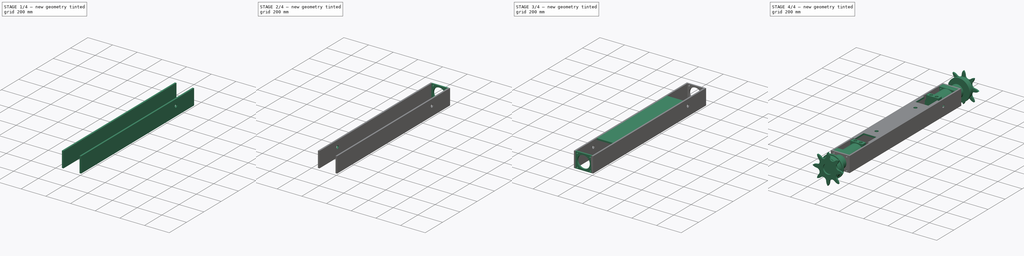
[diagram: build sequence overview — one tinted view per stage of 4, left to right]
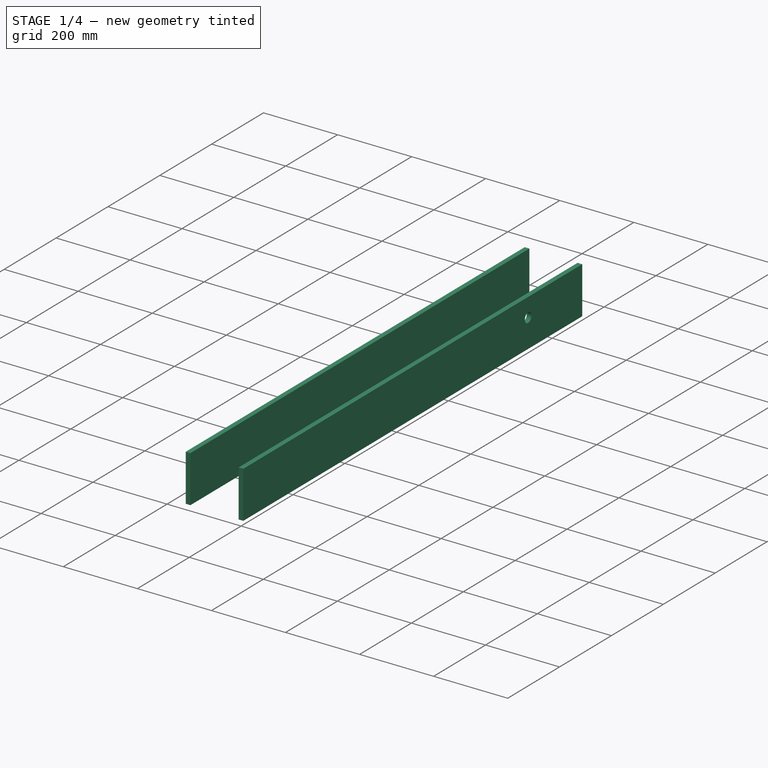
[diagram: stage 1 of 4 — iso view after this stage's code; geometry added in this stage tinted green]
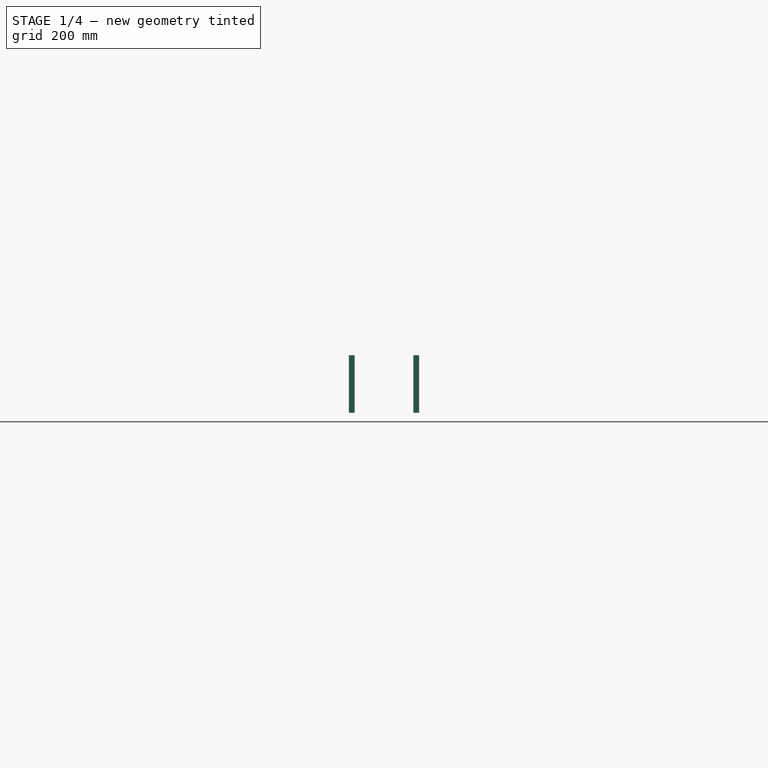
[diagram: stage 1 of 4 — front view after this stage's code; geometry added in this stage tinted green]
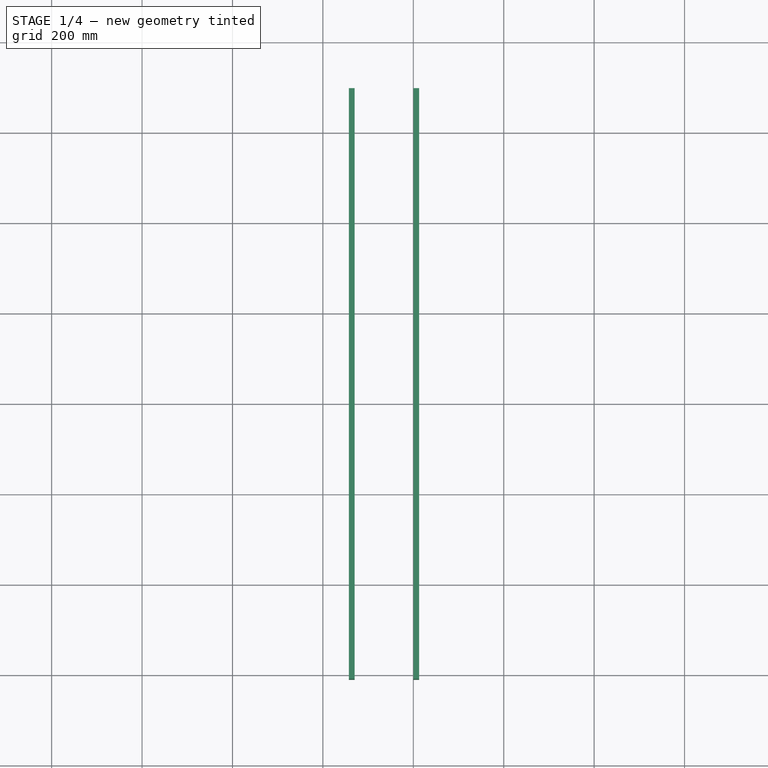
[diagram: stage 1 of 4 — top view after this stage's code; geometry added in this stage tinted green]
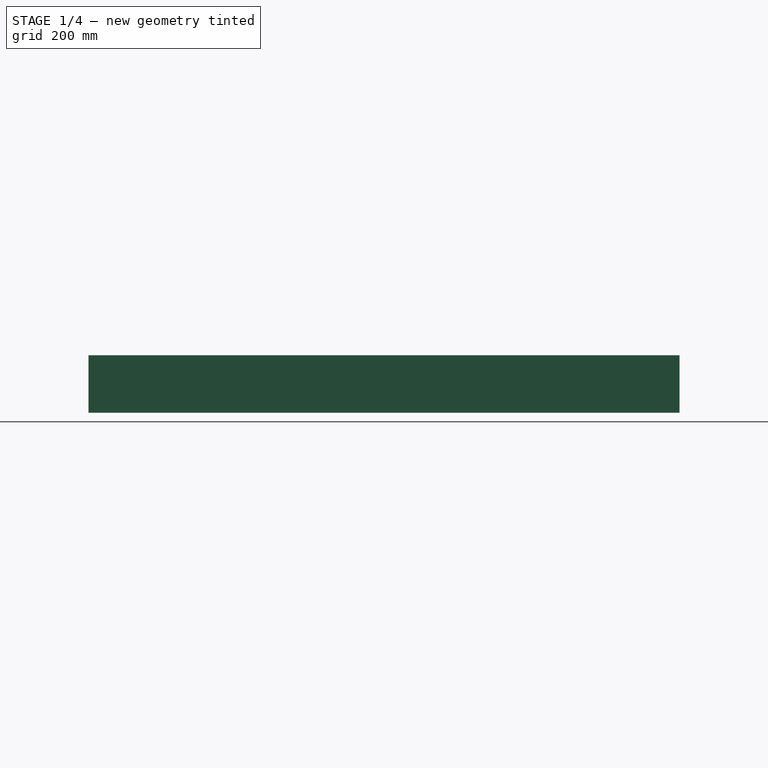
[diagram: stage 1 of 4 — right view after this stage's code; geometry added in this stage tinted green]
FCSTD DOCUMENT  (FreeCAD 0.16R6712 (Git))
Label: LT_track_tensioner
License: All rights reserved
LicenseURL: http://en.wikipedia.org/wiki/All_rights_reserved
objects: App::FeaturePython×13, Part::Feature×4, Sketcher::SketchObject×4, Part::Box×3, PartDesign::Pocket×3, Part::FeaturePython×3, PartDesign::Pad×1, App::DocumentObjectGroup×1, Part::Compound×1
note: 23 computed .brp shape members not serialized (recipe doc carries the construction recipe); baked Part::Feature solids carry a one-line shape summary decoded from their .brp

FEATURE [Part::Feature] Compound  label="Motor Compound004"
  Placement = pos=(444.308,88.9,-139.114) rot=(0,0,1;0rad)
  shape: bbox 249.2 x 371 x 248.2 mm, 260 faces, 5 solids (baked)
FEATURE [Part::Box] Box  label="Cube"
  Height = 127
  Length = 12.7
  Placement = pos=(-399.751,1390.19,-669.671) rot=(0,0,1;0rad)
  Width = 1307.05
FEATURE [Part::Box] Box001  label="Cube001"
  Height = 127
  Length = 12.7
  Placement = pos=(-542.626,1390.19,-669.671) rot=(0,0,1;0rad)
  Width = 1307.05
FEATURE [Sketcher::SketchObject] Sketch004
  Placement = pos=(-387.051,1390.19,-669.671) rot=(0.57735,0.57735,0.57735;2.0944rad)
  Support = -> Box [Face2]
  sketch-geometry (1):
    g0: Circle CenterX=1098.26 CenterY=76.2 CenterZ=0 NormalX=0 NormalY=0 NormalZ=1 Radius=12.7
  constraints (3):
    c: DistanceY(g0) = 76.2
    c: Radius(g0) = 12.7
    c: DistanceX(g0) = 1098.26
FEATURE [PartDesign::Pocket] Pocket002
  Length = 12.7
  Placement = pos=(-399.751,1390.19,-669.671) rot=(0,0,1;0rad)
  Sketch = -> Sketch004
  Type = 0
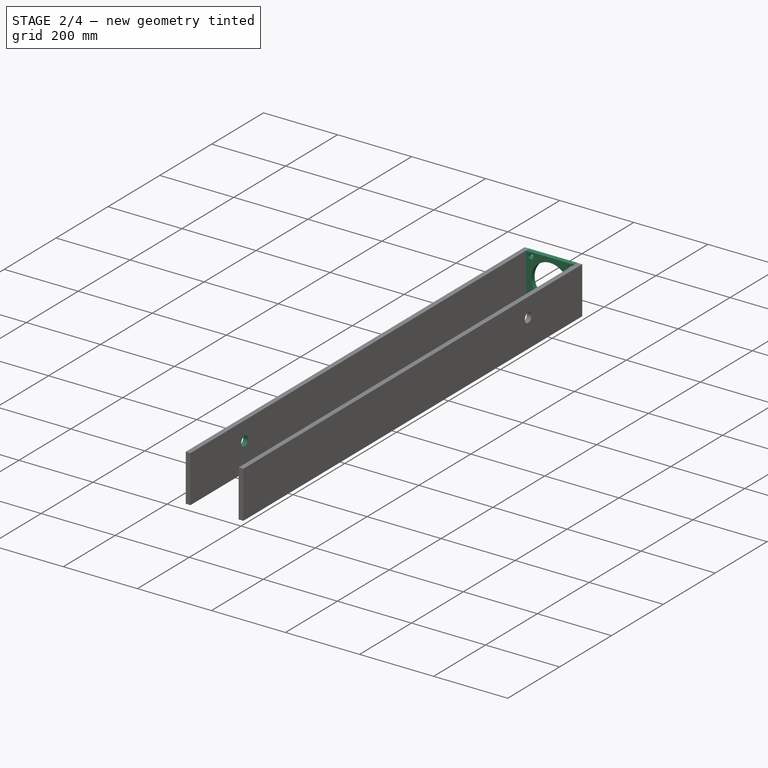
[diagram: stage 2 of 4 — iso view after this stage's code; geometry added in this stage tinted green]
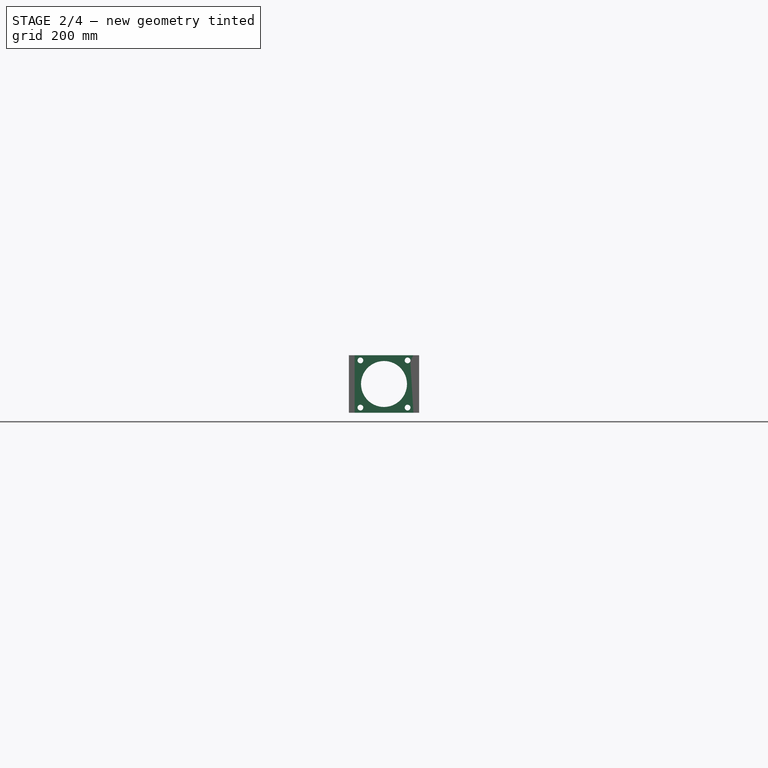
[diagram: stage 2 of 4 — front view after this stage's code; geometry added in this stage tinted green]
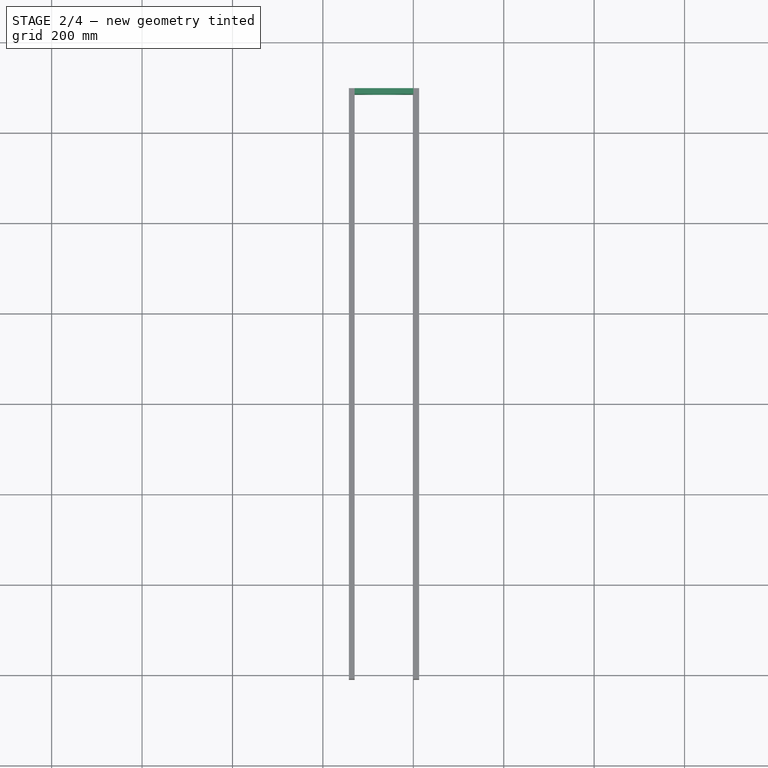
[diagram: stage 2 of 4 — top view after this stage's code; geometry added in this stage tinted green]
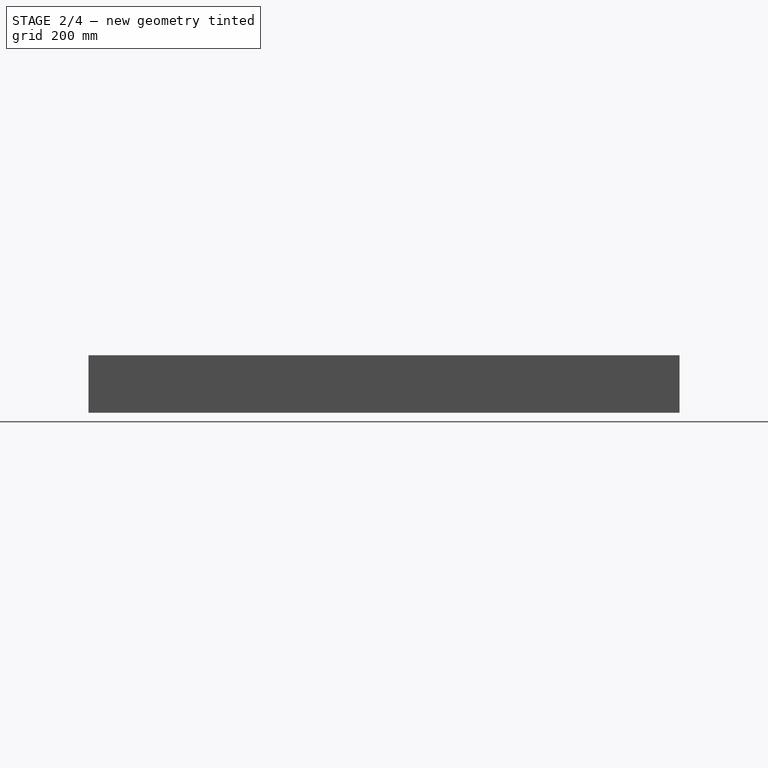
[diagram: stage 2 of 4 — right view after this stage's code; geometry added in this stage tinted green]
FEATURE [Sketcher::SketchObject] Sketch002  label="Sketch001"
  Placement = pos=(-45.4408,1446.96,-520.94) rot=(1,0,0;1.5708rad)
  sketch-geometry (9):
    g0: Circle CenterX=0 CenterY=0 CenterZ=0 NormalX=0 NormalY=0 NormalZ=1 Radius=50.8
    g1: Circle CenterX=-52.1977 CenterY=52.1977 CenterZ=0 NormalX=0 NormalY=0 NormalZ=1 Radius=6.35
    g2: Circle CenterX=52.1977 CenterY=52.1977 CenterZ=0 NormalX=0 NormalY=0 NormalZ=1 Radius=6.35
    g3: Circle CenterX=52.1977 CenterY=-52.1977 CenterZ=0 NormalX=0 NormalY=0 NormalZ=1 Radius=6.35
    g4: Circle CenterX=-52.1977 CenterY=-52.1977 CenterZ=0 NormalX=0 NormalY=0 NormalZ=1 Radius=6.35
    g5: LineSegment StartX=-65.0875 StartY=63.5 StartZ=0 EndX=65.0875 EndY=63.5 EndZ=0
    g6: LineSegment StartX=65.0875 StartY=63.5 StartZ=0 EndX=65.0875 EndY=-63.5 EndZ=0
    g7: LineSegment StartX=65.0875 StartY=-63.5 StartZ=0 EndX=-65.0875 EndY=-63.5 EndZ=0
    g8: LineSegment StartX=-65.0875 StartY=-63.5 StartZ=0 EndX=-65.0875 EndY=63.5 EndZ=0
  constraints (17):
    c: Coincident(g0,g-1)
    c: Radius(g0) = 50.8
    c: Radius(g3) = 6.35
    c: Equal(g3,g2)
    c: Equal(g3,g1)
    c: Equal(g3,g4)
    c: Coincident(g5,g6)
    c: Coincident(g6,g7)
    c: Coincident(g7,g8)
    c: Coincident(g8,g5)
    c: Horizontal(g5)
    c: Horizontal(g7)
    c: Vertical(g6)
    c: Vertical(g8)
    c: Equal(g5,g7)
    c: Distance(g5) = 130.175
    c: Symmetric(g5,g5,g-2)
FEATURE [PartDesign::Pad] Pad  label="Motor mount plate"
  Length = 12.7
  Length2 = 100
  Placement = pos=(-45.4408,1446.96,-520.94) rot=(1,0,0;1.5708rad)
  Sketch = -> Sketch002
  Type = 0
FEATURE [App::FeaturePython] planeConstraint02  # a2plus constraint (typed FeaturePython)
  Object1 = Pocket
  Object2 = Box
  SubElement1 = Face3
  SubElement2 = Face6
  Type = plane
  directionConstraint = 0
  offset = 0
FEATURE [App::FeaturePython] planeConstraint03  # a2plus constraint (typed FeaturePython)
  Object1 = Pocket
  Object2 = Box001
  SubElement1 = Face3
  SubElement2 = Face6
  Type = plane
  directionConstraint = 0
  offset = 0
FEATURE [App::FeaturePython] planeConstraint04  # a2plus constraint (typed FeaturePython)
  Object1 = Box
  Object2 = Pocket
  SubElement1 = Face1
  SubElement2 = Face11
  Type = plane
  directionConstraint = 0
  offset = 0
FEATURE [App::FeaturePython] planeConstraint05  # a2plus constraint (typed FeaturePython)
  Object1 = Box001
  Object2 = Pocket
  SubElement1 = Face2
  SubElement2 = Face1
  Type = plane
  directionConstraint = 0
  offset = 0
FEATURE [App::FeaturePython] planeConstraint06  # a2plus constraint (typed FeaturePython)
  Object1 = Box
  Object2 = Clone001
  SubElement1 = Face1
  SubElement2 = Face11
  Type = plane
  directionConstraint = 0
  offset = 0
FEATURE [App::FeaturePython] planeConstraint09  # a2plus constraint (typed FeaturePython)
  Object1 = Clone002
  Object2 = Box001
  SubElement1 = Face11
  SubElement2 = Face3
  Type = plane
  directionConstraint = 1
  offset = 0
FEATURE [App::FeaturePython] planeConstraint10  # a2plus constraint (typed FeaturePython)
  Object1 = Clone002
  Object2 = Box
  SubElement1 = Face11
  SubElement2 = Face3
  Type = plane
  directionConstraint = 1
  offset = 0
FEATURE [App::FeaturePython] planeConstraint11  # a2plus constraint (typed FeaturePython)
  Object1 = Clone002
  Object2 = Box001
  SubElement1 = Face4
  SubElement2 = Face2
  Type = plane
  directionConstraint = 1
  offset = 0
FEATURE [Part::FeaturePython] Clone  label="Clone of Pad"  # Draft clone (typed FeaturePython)
  Objects = -> [Pad]
  Placement = pos=(-464.839,2697.24,-606.171) rot=(1,0,0;1.5708rad)
  Scale = (1,1,1)
FEATURE [App::FeaturePython] planeConstraint01  # a2plus constraint (typed FeaturePython)
  Object1 = Box
  Object2 = Clone
  SubElement1 = Face6
  SubElement2 = Face1
  Type = plane
  directionConstraint = 0
  offset = 0
FEATURE [App::FeaturePython] planeConstraint07  # a2plus constraint (typed FeaturePython)
  Object1 = Box
  Object2 = Clone
  SubElement1 = Face4
  SubElement2 = Face10
  Type = plane
  directionConstraint = 1
  offset = 0
FEATURE [App::FeaturePython] planeConstraint08  # a2plus constraint (typed FeaturePython)
  Object1 = Box
  Object2 = Clone
  SubElement1 = Face1
  SubElement2 = Face2
  Type = plane
  directionConstraint = 0
  offset = 0
FEATURE [Part::Feature] Fusion001003  label="Motor R"
  Placement = pos=(-464.839,2088.69,-606.171) rot=(0,0,1;0rad)
  shape: bbox 248.4 x 374.7 x 248.4 mm, 202 faces, 2 solids (baked)
FEATURE [App::FeaturePython] circularEdgeConstraint01  # a2plus constraint (typed FeaturePython)
  Object1 = Clone002
  Object2 = Fusion001003
  SubElement1 = Edge14
  SubElement2 = Edge50
  Type = circularEdge
  directionConstraint = 0
  lockRotation = false
  offset = 0
FEATURE [Part::Feature] Part__Mirroring002  label="Motor L"
  Placement = pos=(-929.678,0,2e-12) rot=(0,0,1;0rad)
  shape: bbox 248.4 x 374.7 x 248.4 mm, 202 faces, 2 solids (baked)
FEATURE [App::FeaturePython] circularEdgeConstraint02  # a2plus constraint (typed FeaturePython)
  Object1 = Clone
  Object2 = Part__Mirroring002
  SubElement1 = Edge15
  SubElement2 = Edge50
  Type = circularEdge
  directionConstraint = 1
  lockRotation = false
  offset = 0
FEATURE [App::DocumentObjectGroup] Group  label="constraints"
  Group = -> [planeConstraint02,planeConstraint03,planeConstraint04,planeConstraint05,planeConstraint06,planeConstraint09,planeConstraint10,planeConstraint11,planeConstraint01,planeConstraint07,planeConstraint08,circularEdgeConstraint01,circularEdgeConstraint02]
FEATURE [Sketcher::SketchObject] Sketch003
  Placement = pos=(-542.626,1390.19,-669.671) rot=(0.57735,-0.57735,-0.57735;2.0944rad)
  Support = -> Box001 [Face1]
  sketch-geometry (1):
    g0: Circle CenterX=-208.788 CenterY=76.2 CenterZ=0 NormalX=0 NormalY=0 NormalZ=1 Radius=12.7
  constraints (3):
    c: Radius(g0) = 12.7
    c: DistanceX(g0) = -208.788
    c: DistanceY(g0) = 76.2
FEATURE [PartDesign::Pocket] Pocket001
  Length = 12.7
  Placement = pos=(-542.626,1390.19,-669.671) rot=(0,0,1;0rad)
  Sketch = -> Sketch003
  Type = 0
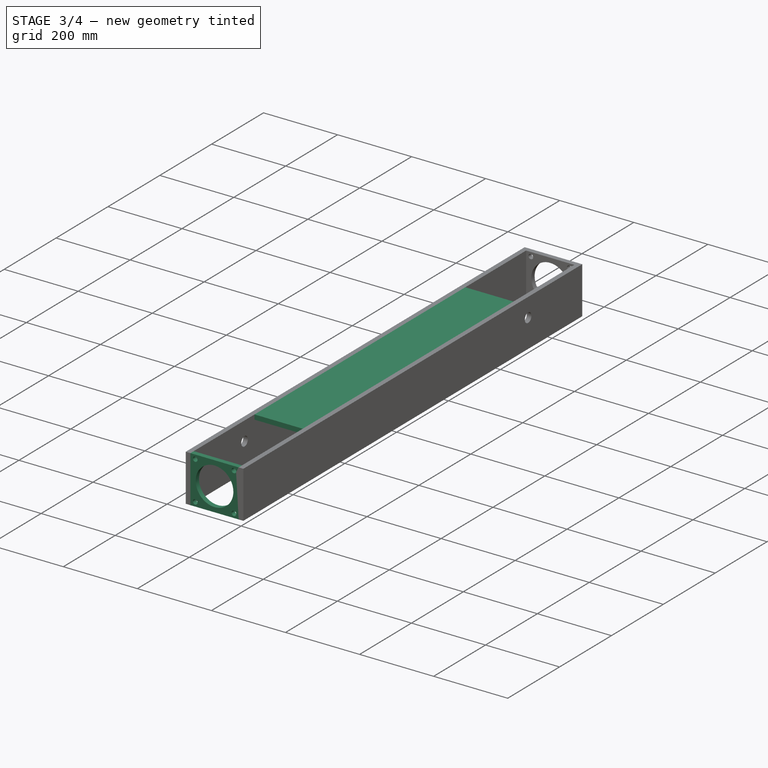
[diagram: stage 3 of 4 — iso view after this stage's code; geometry added in this stage tinted green]
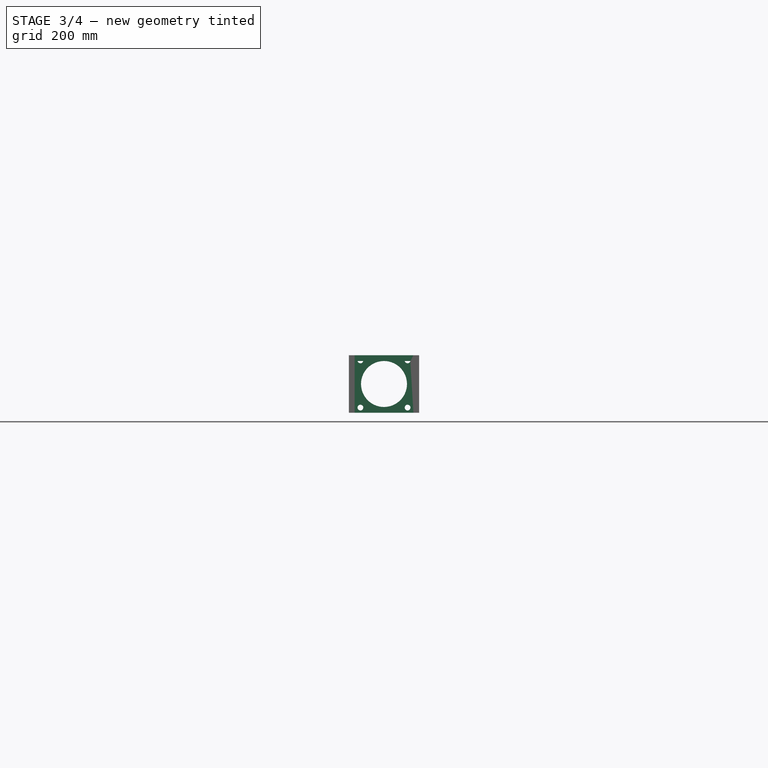
[diagram: stage 3 of 4 — front view after this stage's code; geometry added in this stage tinted green]
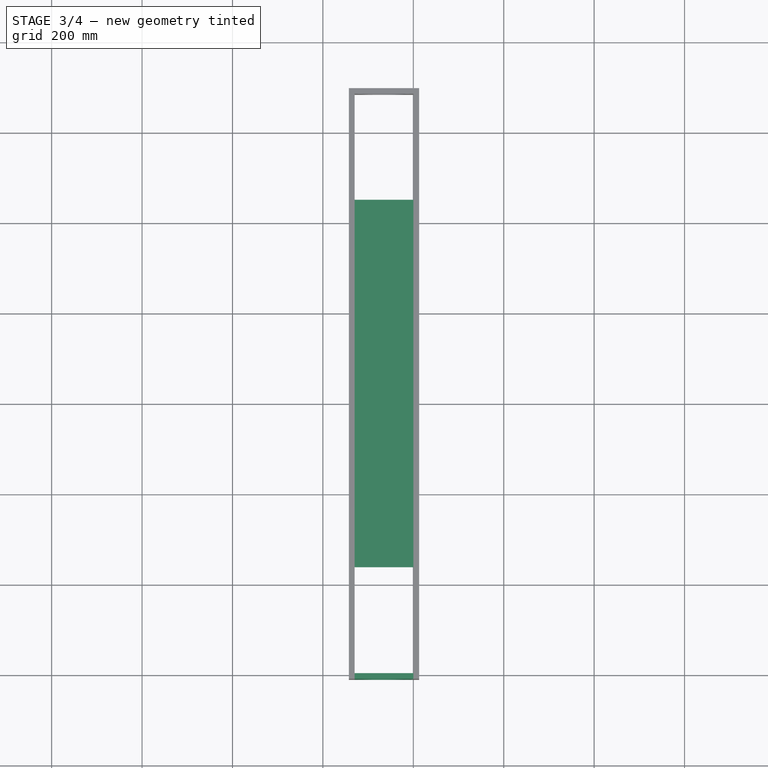
[diagram: stage 3 of 4 — top view after this stage's code; geometry added in this stage tinted green]
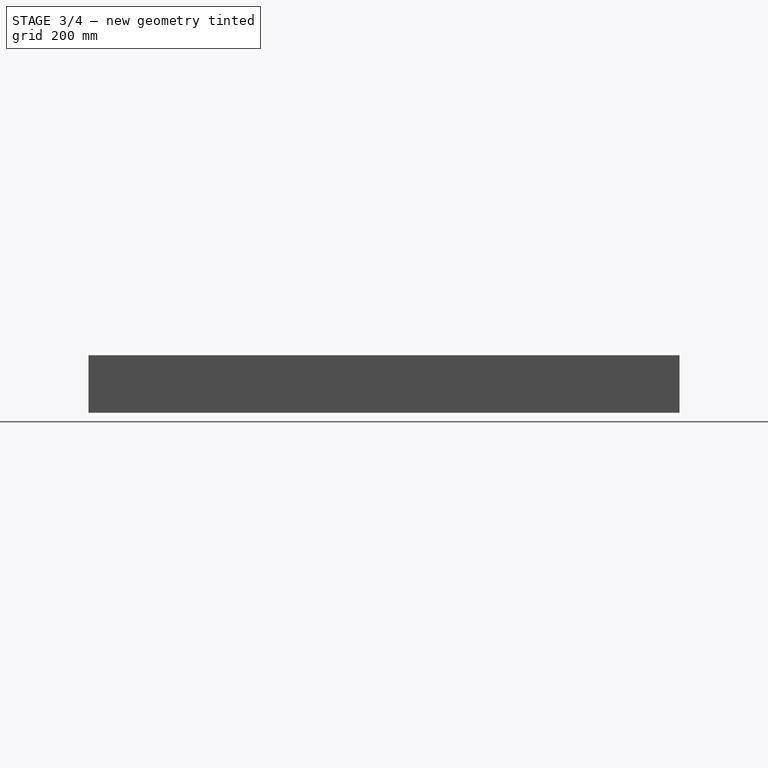
[diagram: stage 3 of 4 — right view after this stage's code; geometry added in this stage tinted green]
FEATURE [Part::Box] Box002  label="Cube002"
  Height = 12.7
  Length = 130.175
  Placement = pos=(-529.926,1637.31,-555.371) rot=(0,0,1;0rad)
  Width = 812.8
FEATURE [Part::FeaturePython] Clone002  label="Clone of Pad001"  # Draft clone (typed FeaturePython)
  Objects = -> [Pad]
  Placement = pos=(-464.839,1402.89,-606.171) rot=(1,0,0;1.5708rad)
  Scale = (1,1,1)
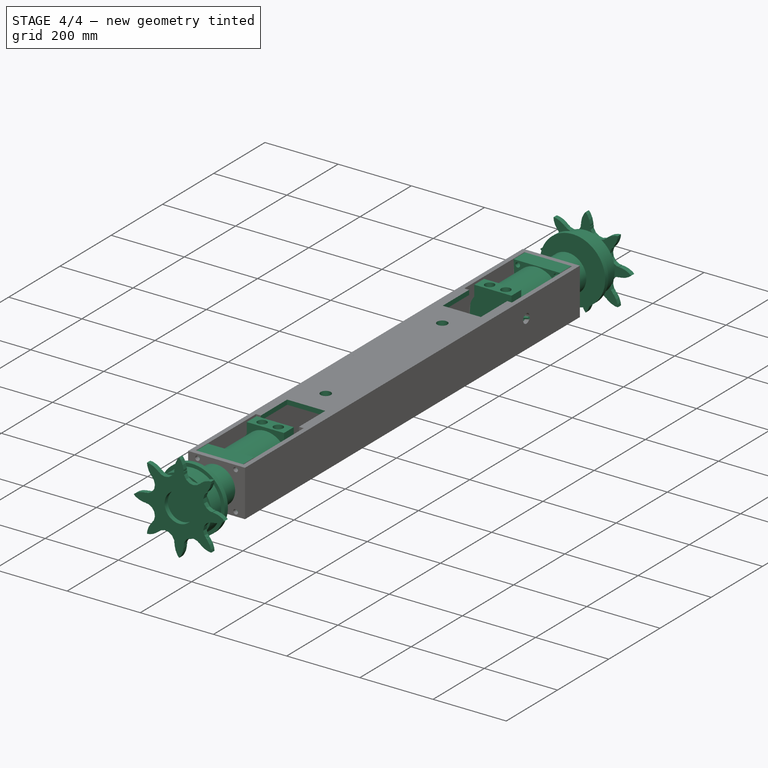
[diagram: stage 4 of 4 — iso view after this stage's code; geometry added in this stage tinted green]
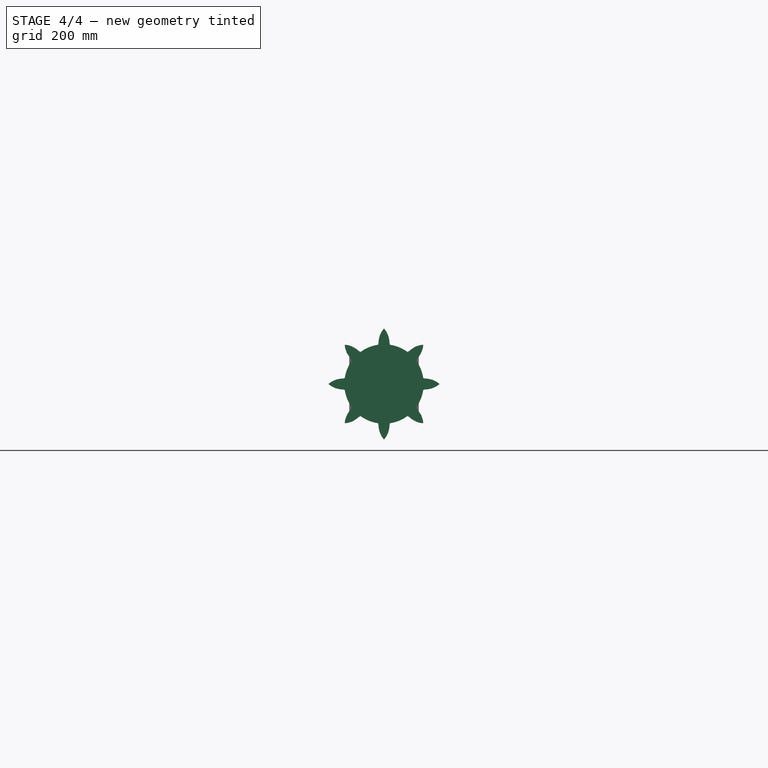
[diagram: stage 4 of 4 — front view after this stage's code; geometry added in this stage tinted green]
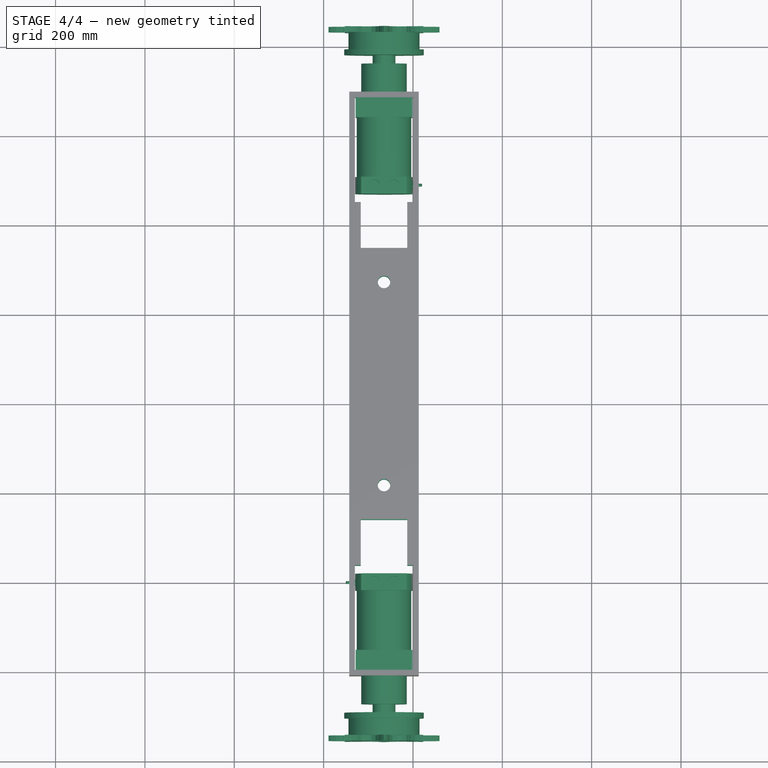
[diagram: stage 4 of 4 — top view after this stage's code; geometry added in this stage tinted green]
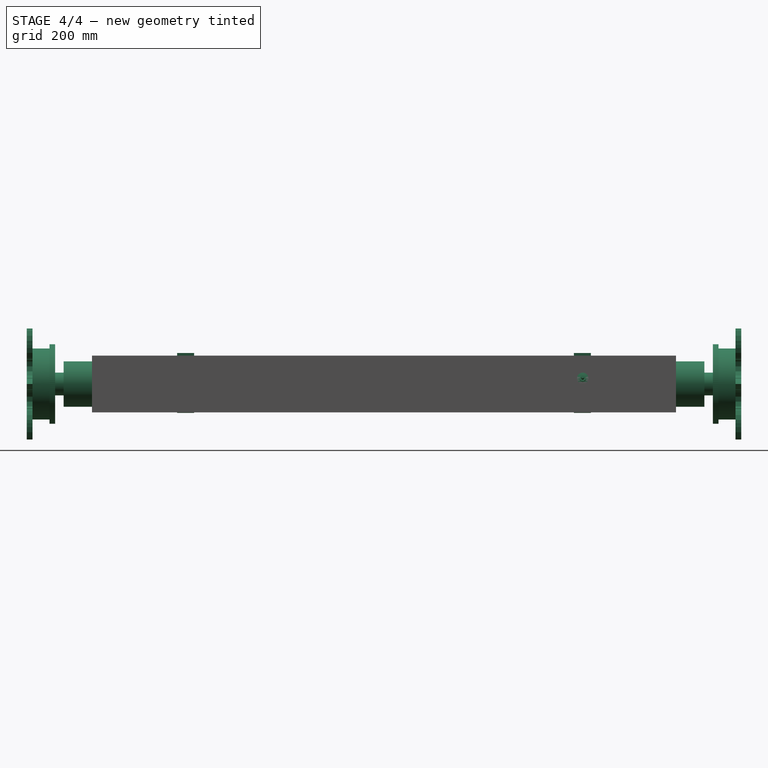
[diagram: stage 4 of 4 — right view after this stage's code; geometry added in this stage tinted green]
FEATURE [Sketcher::SketchObject] Sketch
  Placement = pos=(-529.926,1637.31,-542.671) rot=(0,0,1;0rad)
  Support = -> Box002 [Face6]
  sketch-geometry (14):
    g0: LineSegment StartX=13.0175 StartY=812.8 StartZ=0 EndX=117.157 EndY=812.8 EndZ=0
    g1: LineSegment StartX=117.157 StartY=812.8 StartZ=0 EndX=117.157 EndY=709.93 EndZ=0
    g2: LineSegment StartX=117.157 StartY=709.93 StartZ=0 EndX=13.0175 EndY=709.93 EndZ=0
    g3: LineSegment StartX=13.0175 StartY=709.93 StartZ=0 EndX=13.0175 EndY=812.8 EndZ=0
    g4: LineSegment StartX=13.0175 StartY=102.87 StartZ=0 EndX=117.157 EndY=102.87 EndZ=0
    g5: LineSegment StartX=117.157 StartY=102.87 StartZ=0 EndX=117.157 EndY=0 EndZ=0
    g6: LineSegment StartX=117.157 StartY=0 StartZ=0 EndX=13.0175 EndY=0 EndZ=0
    g7: LineSegment StartX=13.0175 StartY=0 StartZ=0 EndX=13.0175 EndY=102.87 EndZ=0
    g8: Circle CenterX=65.0875 CenterY=633.73 CenterZ=0 NormalX=0 NormalY=0 NormalZ=1 Radius=13.97
    g9: Circle CenterX=65.0875 CenterY=179.07 CenterZ=0 NormalX=0 NormalY=0 NormalZ=1 Radius=13.97
    g10: LineSegment [constr] StartX=13.0175 StartY=709.93 StartZ=0 EndX=65.0875 EndY=633.73 EndZ=0
    g11: LineSegment [constr] StartX=117.157 StartY=709.93 StartZ=0 EndX=65.0875 EndY=633.73 EndZ=0
    g12: LineSegment [constr] StartX=13.0175 StartY=102.87 StartZ=0 EndX=65.0875 EndY=179.07 EndZ=0
    g13: LineSegment [constr] StartX=65.0875 StartY=179.07 StartZ=0 EndX=117.157 EndY=102.87 EndZ=0
  constraints (38):
    c: Coincident(g0,g1)
    c: Coincident(g1,g2)
    c: Coincident(g2,g3)
    c: Coincident(g3,g0)
    c: Horizontal(g0)
    c: Horizontal(g2)
    c: Vertical(g1)
    c: Vertical(g3)
    c: Coincident(g4,g5)
    c: Coincident(g5,g6)
    c: Coincident(g6,g7)
    c: Coincident(g7,g4)
    c: Horizontal(g4)
    c: Horizontal(g6)
    c: Vertical(g5)
    c: Vertical(g7)
    c: Distance(g3) = 102.87
    c: Distance(g2) = 104.14
    c: Distance(g-1,g7) = 13.0175
    c: PointOnObject(g6,g-1)
    c: Distance(g4) = 104.14
    c: DistanceX(g-2,g0) = 13.0175
    c: DistanceY(g-1,g0) = 812.8
    c: Radius(g9) = 13.97
    c: Equal(g9,g8)
    c: Coincident(g10,g2)
    c: Coincident(g10,g8)
    c: Coincident(g11,g1)
    c: Coincident(g11,g8)
    c: Equal(g11,g10)
    c: Distance(g8,g2) = 76.2
    c: Coincident(g4,g12)
    c: Coincident(g12,g9)
    c: Coincident(g12,g13)
    c: Coincident(g13,g4)
    c: Equal(g13,g12)
    c: Distance(g9,g4) = 76.2
    c: Equal(g5,g1)
FEATURE [PartDesign::Pocket] Pocket
  Length = 12.7
  Placement = pos=(-529.926,1637.31,-555.371) rot=(0,0,1;0rad)
  Sketch = -> Sketch
  Type = 0
FEATURE [Part::FeaturePython] Clone001  label="Clone of Pocket"  # Draft clone (typed FeaturePython)
  Objects = -> [Pocket]
  Placement = pos=(-529.926,1637.31,-669.671) rot=(0,0,1;0rad)
  Scale = (1,1,1)
FEATURE [Part::Compound] Compound001
  Links = -> [Clone,Clone001,Clone002,Pocket,Pocket002,Part__Mirroring002,Fusion001003,Pocket001]
FEATURE [Part::Feature] Compound001001  label="Compound002"
  Placement = pos=(812.8,0,0) rot=(0,0,1;0rad)
  shape: bbox 248.4 x 1599 x 248.4 mm, 472 faces, 10 solids (baked)
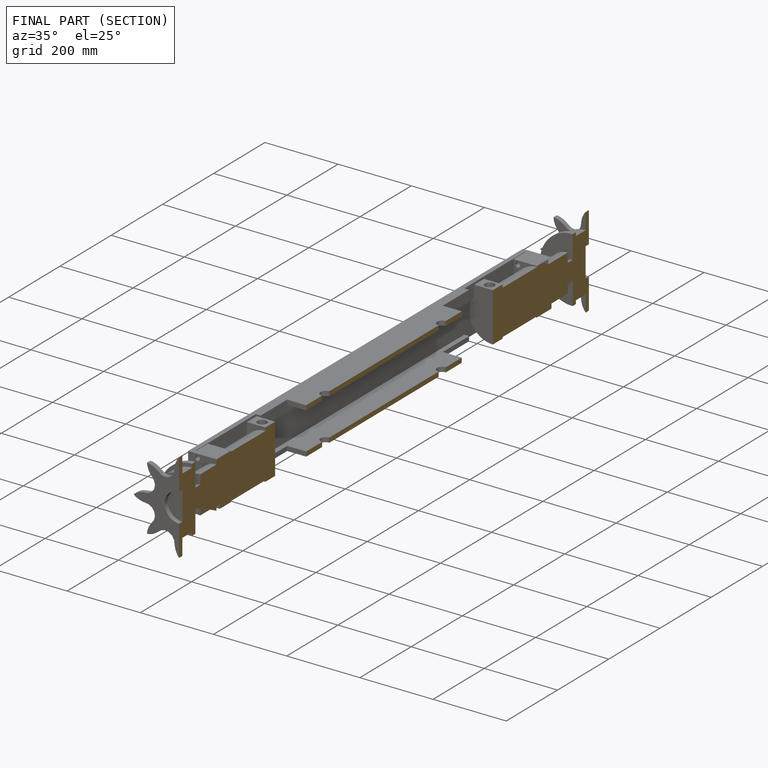
[diagram: finished part — half-section view (interior)]
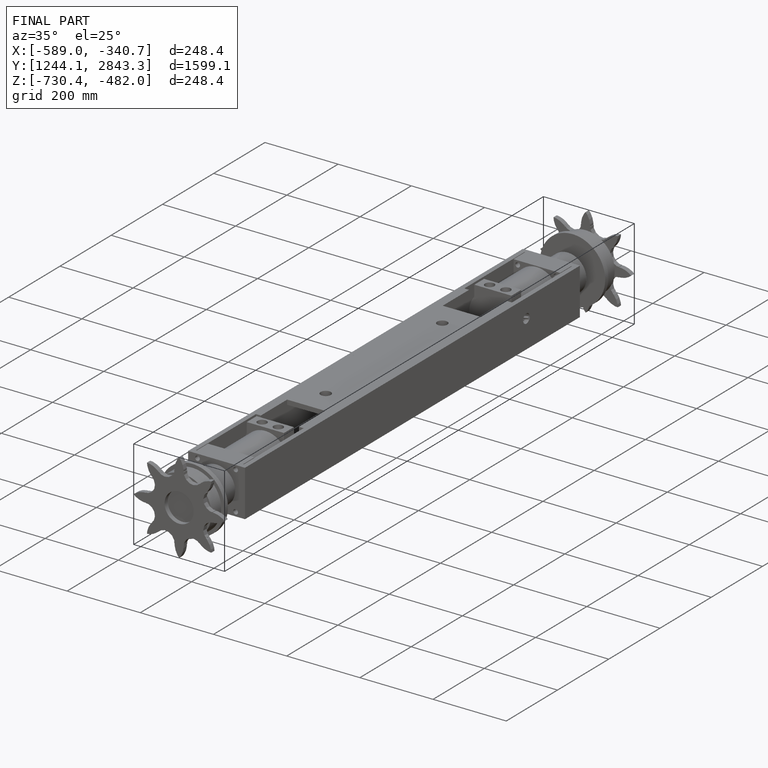
[diagram: finished part — iso view with bounding-box wireframe]
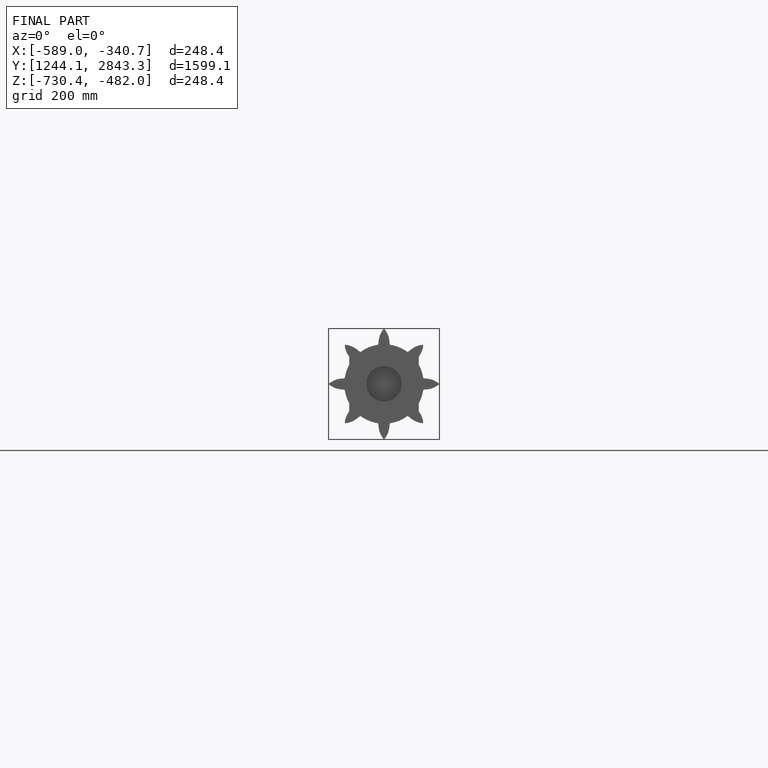
[diagram: finished part — front view with bounding-box wireframe]
